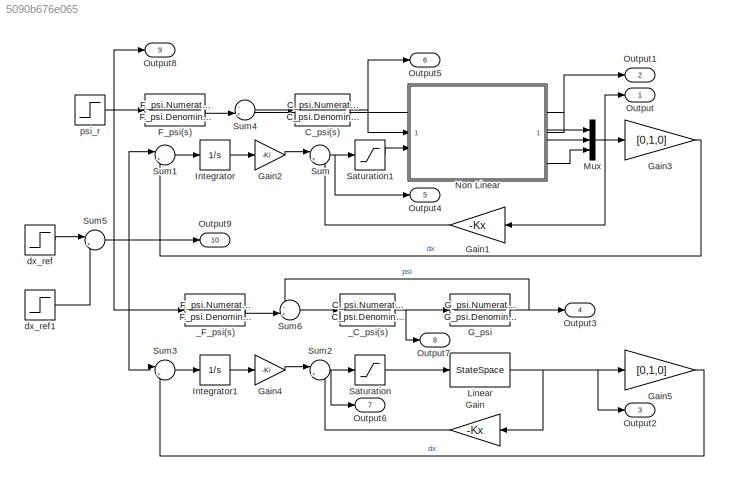
MODEL slx_5090b676e065
KIND model
CONFIG AbsTol = auto
CONFIG EnableMultiTasking = off
CONFIG FixedStep = auto
CONFIG MaxStep = auto
CONFIG MinStep = auto
CONFIG RelTol = 1e-3
CONFIG SampleTimeConstraint = Unconstrained
CONFIG SolverName = VariableStepAuto
CONFIG StartTime = 0.0
CONFIG StopTime = 25
BLOCK [TransferFcn] C_psi(s)
  Denominator = C_psi.Denominator{1}
  Numerator = C_psi.Numerator{1}
BLOCK [TransferFcn] F_psi(s)
  Denominator = F_psi.Denominator{1}
  Numerator = F_psi.Numerator{1}
BLOCK [TransferFcn] G_psi
  Denominator = G_psi.Denominator{1}
  Numerator = G_psi.Numerator{1}
BLOCK [Gain] Gain
  Gain = -Kx
  Multiplication = Matrix(K*u)
BLOCK [Gain] Gain1
  Gain = -Kx
  Multiplication = Matrix(K*u)
BLOCK [Gain] Gain2
  Gain = -Ki
BLOCK [Gain] Gain3
  Gain = [0,1,0]
  Multiplication = Matrix(K*u)
BLOCK [Gain] Gain4
  Gain = -Ki
BLOCK [Gain] Gain5
  Gain = [0,1,0]
  Multiplication = Matrix(K*u)
BLOCK [Integrator] Integrator
BLOCK [Integrator] Integrator1
BLOCK [StateSpace] Linear
  A = Ar
  B = Br
  C = Cr
  D = zeros(3,1)
  InitialCondition = zeros(3,1)
BLOCK [Mux] Mux
  DisplayOption = bar
  Inputs = 3
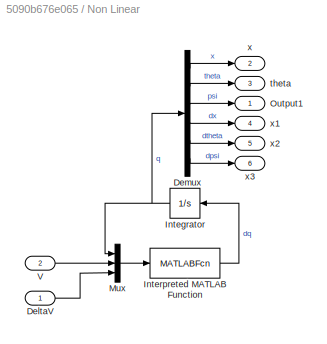
BLOCK [SubSystem] Non Linear
BLOCK [Inport] Non Linear/DeltaV
BLOCK [Demux] Non Linear/Demux
  Outputs = 6
BLOCK [Integrator] Non Linear/Integrator
  InitialCondition = [0;0;0;0;0;0]
BLOCK [MATLABFcn] Non Linear/Interpreted MATLAB Function
  MATLABFcn = modelo8_Func
  OutputDimensions = 6
  OutputSignalType = real
BLOCK [Mux] Non Linear/Mux
  DisplayOption = bar
  Inputs = 3
BLOCK [Outport] Non Linear/Output1
  IconDisplay = Signal name
BLOCK [Inport] Non Linear/V
  Port = 2
BLOCK [Outport] Non Linear/theta
  IconDisplay = Signal name
  Port = 3
BLOCK [Outport] Non Linear/x
  IconDisplay = Signal name
  Port = 2
BLOCK [Outport] Non Linear/x1
  IconDisplay = Signal name
  Port = 4
BLOCK [Outport] Non Linear/x2
  IconDisplay = Signal name
  Port = 5
BLOCK [Outport] Non Linear/x3
  IconDisplay = Signal name
  Port = 6
BLOCK [Outport] Output
BLOCK [Outport] Output1
  Port = 2
BLOCK [Outport] Output2
  Port = 3
BLOCK [Outport] Output3
  Port = 4
BLOCK [Outport] Output4
  Port = 5
BLOCK [Outport] Output5
  Port = 6
BLOCK [Outport] Output6
  Port = 7
BLOCK [Outport] Output7
  Port = 8
BLOCK [Outport] Output8
  Port = 9
BLOCK [Outport] Output9
  Port = 10
BLOCK [Saturate] Saturation
  LowerLimit = -7.4
  UpperLimit = 7.4
BLOCK [Saturate] Saturation1
  LowerLimit = -7.4
  UpperLimit = 7.4
BLOCK [Sum] Sum
  Inputs = |++
BLOCK [Sum] Sum1
  Inputs = |+-
BLOCK [Sum] Sum2
  Inputs = |++
BLOCK [Sum] Sum3
  Inputs = |+-
BLOCK [Sum] Sum4
  Inputs = -+|
BLOCK [Sum] Sum5
  Inputs = |++
BLOCK [Sum] Sum6
  Inputs = -+|
BLOCK [TransferFcn] _C_psi(s)
  Denominator = C_psi.Denominator{1}
  Numerator = C_psi.Numerator{1}
BLOCK [TransferFcn] _F_psi(s)
  Denominator = F_psi.Denominator{1}
  Numerator = F_psi.Numerator{1}
BLOCK [Step] dx_ref
  After = 0.3
  SampleTime = 0
  Time = 10
BLOCK [Step] dx_ref1
  After = -0.3
  SampleTime = 0
  Time = 20
BLOCK [Step] psi_r
  After = pi/2
  SampleTime = 0
  Time = 15
NET C_psi(s):1 -> Non Linear:1, Output5:1
LINE F_psi(s):1 -> Sum4:2
NET G_psi:1 -> Output3:1, Sum6:1
LINE Gain1:1 -> Sum:2
LINE Gain2:1 -> Sum:1
LINE Gain3:1 -> Sum1:2
LINE Gain4:1 -> Sum2:1
LINE Gain5:1 -> Sum3:2
LINE Gain:1 -> Sum2:2
LINE Integrator1:1 -> Gain4:1
LINE Integrator:1 -> Gain2:1
NET Linear:1 -> Gain5:1, Gain:1, Output2:1
NET Mux:1 -> Gain1:1, Gain3:1, Output:1
LINE Non Linear/DeltaV:1 -> Non Linear/Mux:3
LINE Non Linear/Demux:1 -> Non Linear/x:1
LINE Non Linear/Demux:2 -> Non Linear/theta:1
LINE Non Linear/Demux:3 -> Non Linear/Output1:1
LINE Non Linear/Demux:4 -> Non Linear/x1:1
LINE Non Linear/Demux:5 -> Non Linear/x2:1
LINE Non Linear/Demux:6 -> Non Linear/x3:1
NET Non Linear/Integrator:1 -> Non Linear/Demux:1, Non Linear/Mux:1
LINE Non Linear/Interpreted MATLAB Function:1 -> Non Linear/Integrator:1
LINE Non Linear/Mux:1 -> Non Linear/Interpreted MATLAB Function:1
LINE Non Linear/V:1 -> Non Linear/Mux:2
NET Non Linear:1 -> Output1:1, Sum4:1
LINE Non Linear:3 -> Mux:1
LINE Non Linear:4 -> Mux:2
LINE Non Linear:5 -> Mux:3
LINE Saturation1:1 -> Non Linear:2
LINE Saturation:1 -> Linear:1
LINE Sum1:1 -> Integrator:1
NET Sum2:1 -> Output6:1, Saturation:1
LINE Sum3:1 -> Integrator1:1
LINE Sum4:1 -> C_psi(s):1
NET Sum5:1 -> Output9:1, Sum1:1, Sum3:1
LINE Sum6:1 -> _C_psi(s):1
NET Sum:1 -> Output4:1, Saturation1:1
NET _C_psi(s):1 -> G_psi:1, Output7:1
LINE _F_psi(s):1 -> Sum6:2
LINE dx_ref1:1 -> Sum5:2
LINE dx_ref:1 -> Sum5:1
NET psi_r:1 -> F_psi(s):1, Output8:1, _F_psi(s):1
note: NET lines group one-source signal fan-out (src -> all destinations, sorted); 1:1 wires keep LINE
